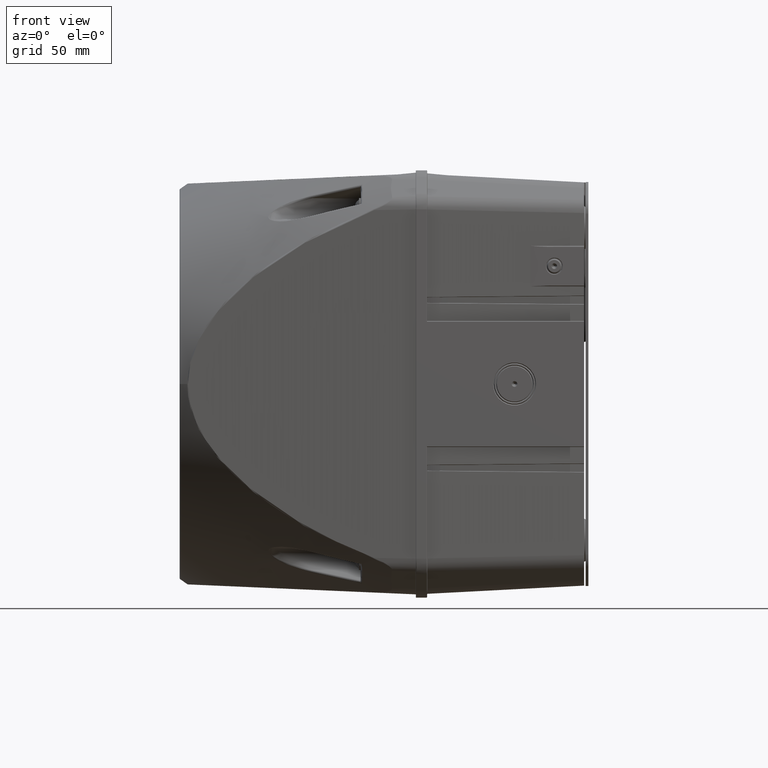
[diagram: clean part render]
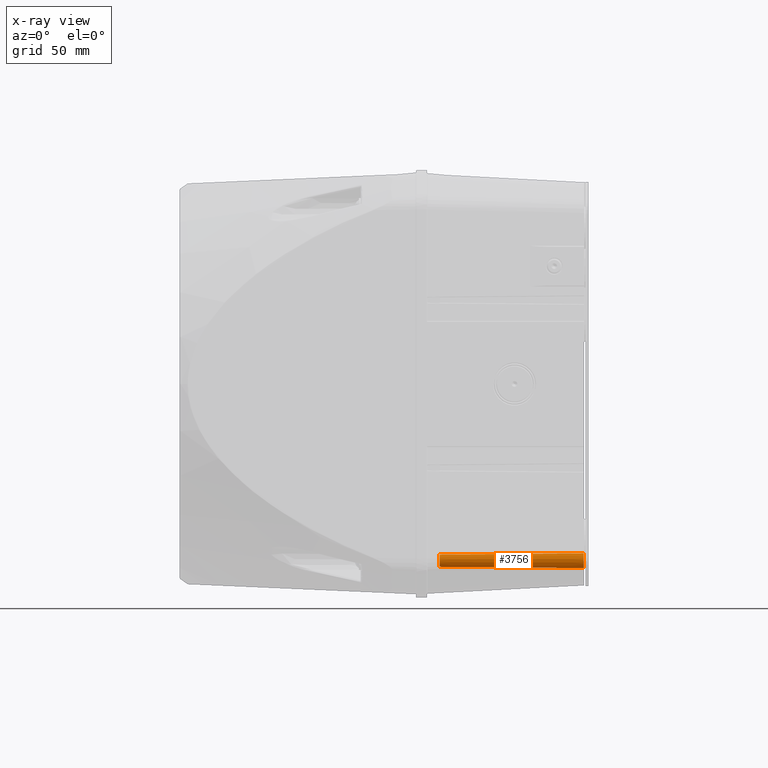
[diagram: x-ray — body ghosted, one internal face saturated and labeled with its STEP entity id]
A machine part, front view, then the same camera in x-ray: the body is ghosted and one INTERNAL B-rep face — a face not visible from any outside direction — is saturated and labeled: STEP entity #3756.
In plain terms, the highlighted conical surface has half-angle 0.5 deg.
Its self-contained STEP definition (entity closure, byte-faithful):
#943=CONICAL_SURFACE('',#23423,4.05000000000001,0.5);
#1603=FACE_BOUND('',#7064,.T.);
#1604=FACE_BOUND('',#7065,.T.);
#2018=CIRCLE('',#23421,3.99722148869631);
#2019=CIRCLE('',#23422,3.32479973153382);
#3323=B_SPLINE_CURVE_WITH_KNOTS('',3,(#40597,#40598,#40599,#40600),.UNSPECIFIED.,
 .F.,.F.,(4,4),(0.,1.),.UNSPECIFIED.);
#3324=B_SPLINE_CURVE_WITH_KNOTS('',3,(#40602,#40603,#40604,#40605,#40606),
 .UNSPECIFIED.,.F.,.F.,(4,1,4),(0.,0.5,1.),.UNSPECIFIED.);
#3325=B_SPLINE_CURVE_WITH_KNOTS('',3,(#40608,#40609,#40610,#40611),.UNSPECIFIED.,
 .F.,.F.,(4,4),(0.,1.),.UNSPECIFIED.);
#3756=ADVANCED_FACE('',(#1603,#1604),#943,.F.);
#7064=EDGE_LOOP('',(#9697,#9698,#9699,#9700));
#7065=EDGE_LOOP('',(#9701));
#9697=ORIENTED_EDGE('',*,*,#17658,.T.);
#9698=ORIENTED_EDGE('',*,*,#17659,.T.);
#9699=ORIENTED_EDGE('',*,*,#17660,.T.);
#9700=ORIENTED_EDGE('',*,*,#17661,.T.);
#9701=ORIENTED_EDGE('',*,*,#17662,.F.);
#15471=VERTEX_POINT('',#40595);
#15472=VERTEX_POINT('',#40596);
#15473=VERTEX_POINT('',#40601);
#15474=VERTEX_POINT('',#40607);
#15475=VERTEX_POINT('',#40613);
#17658=EDGE_CURVE('',#15471,#15472,#2018,.T.);
#17659=EDGE_CURVE('',#15472,#15473,#3323,.T.);
#17660=EDGE_CURVE('',#15473,#15474,#3324,.T.);
#17661=EDGE_CURVE('',#15474,#15471,#3325,.T.);
#17662=EDGE_CURVE('',#15475,#15475,#2019,.T.);
#23421=AXIS2_PLACEMENT_3D('',#40594,#26854,#26855);
#23422=AXIS2_PLACEMENT_3D('',#40612,#26856,#26857);
#23423=AXIS2_PLACEMENT_3D('',#40614,#26858,#26859);
#26854=DIRECTION('',(0.,0.,-1.));
#26855=DIRECTION('',(0.999999999999998,0.,0.));
#26856=DIRECTION('',(0.,0.,-1.));
#26857=DIRECTION('',(1.,0.,0.));
#26858=DIRECTION('',(0.,0.,-1.));
#26859=DIRECTION('',(1.,0.,-4.34466037688891E-015));
#40594=CARTESIAN_POINT('',(-94.5,94.5,-218.10100589025));
#40595=CARTESIAN_POINT('',(-92.7022833036751,90.9298467386609,-218.10100589025));
#40596=CARTESIAN_POINT('',(-90.9298467386609,92.7022833036751,-218.10100589025));
#40597=CARTESIAN_POINT('',(-90.9298467386609,92.7022833036751,-218.10100589025));
#40598=CARTESIAN_POINT('',(-91.0523639149069,92.4589718312729,-218.10100589025));
#40599=CARTESIAN_POINT('',(-91.1961097636072,92.233294853462,-218.142237818773));
#40600=CARTESIAN_POINT('',(-91.3634365233015,92.0211902532044,-218.169064705289));
#40601=CARTESIAN_POINT('',(-91.3634365233015,92.0211902532044,-218.169064705289));
#40602=CARTESIAN_POINT('',(-91.3634365233015,92.0211902532044,-218.169064705289));
#40603=CARTESIAN_POINT('',(-91.4601248943028,91.8986273809044,-218.184566397672));
#40604=CARTESIAN_POINT('',(-91.6665865530473,91.6665865530464,-218.197723999478));
#40605=CARTESIAN_POINT('',(-91.8986273809054,91.460124894302,-218.184566397672));
#40606=CARTESIAN_POINT('',(-92.0211902532054,91.3634365233007,-218.169064705289));
#40607=CARTESIAN_POINT('',(-92.0211902532054,91.3634365233007,-218.169064705289));
#40608=CARTESIAN_POINT('',(-92.0211902532054,91.3634365233007,-218.169064705289));
#40609=CARTESIAN_POINT('',(-92.2332948534628,91.1961097636067,-218.142237818773));
#40610=CARTESIAN_POINT('',(-92.4589718312733,91.0523639149067,-218.10100589025));
#40611=CARTESIAN_POINT('',(-92.7022833036751,90.9298467386609,-218.10100589025));
#40612=CARTESIAN_POINT('',(-94.5,94.5,-141.049104419422));
#40613=CARTESIAN_POINT('',(-91.1752002684662,94.5,-141.049104419422));
#40614=CARTESIAN_POINT('',(-94.5,94.5,-224.148824256376));